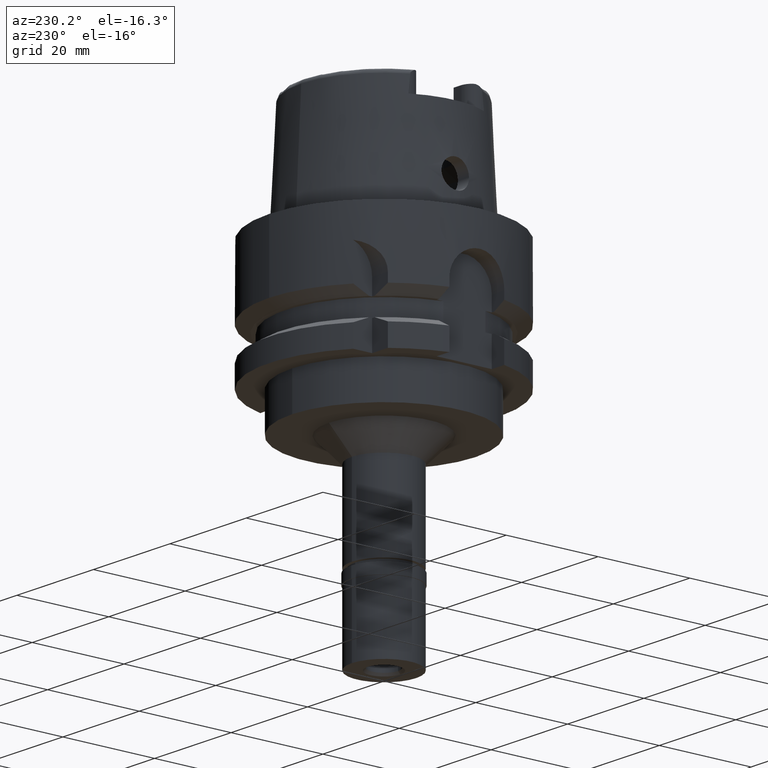
[diagram: clean part render]
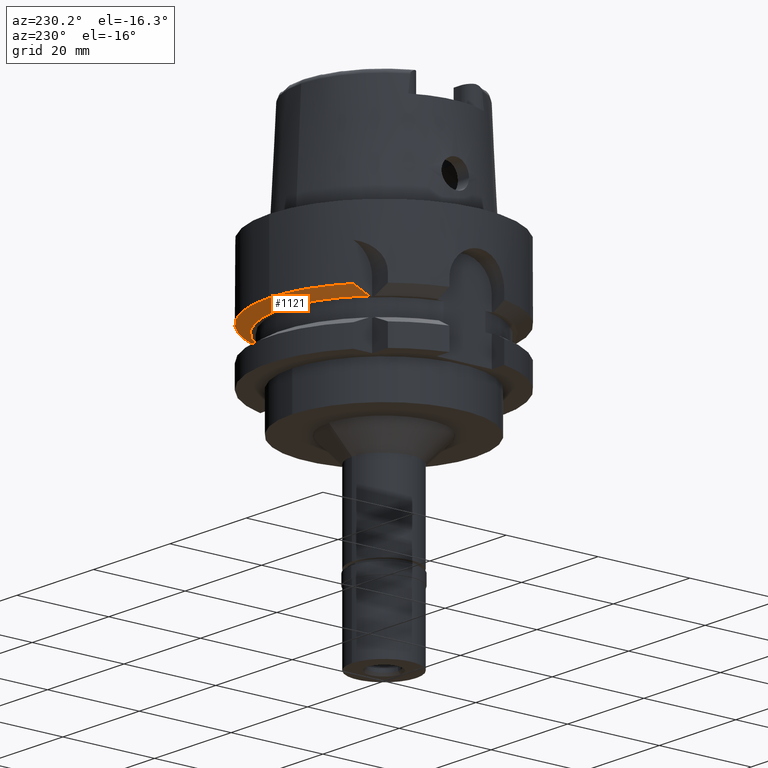
[diagram: same view with one face highlighted and labeled with its STEP entity id]
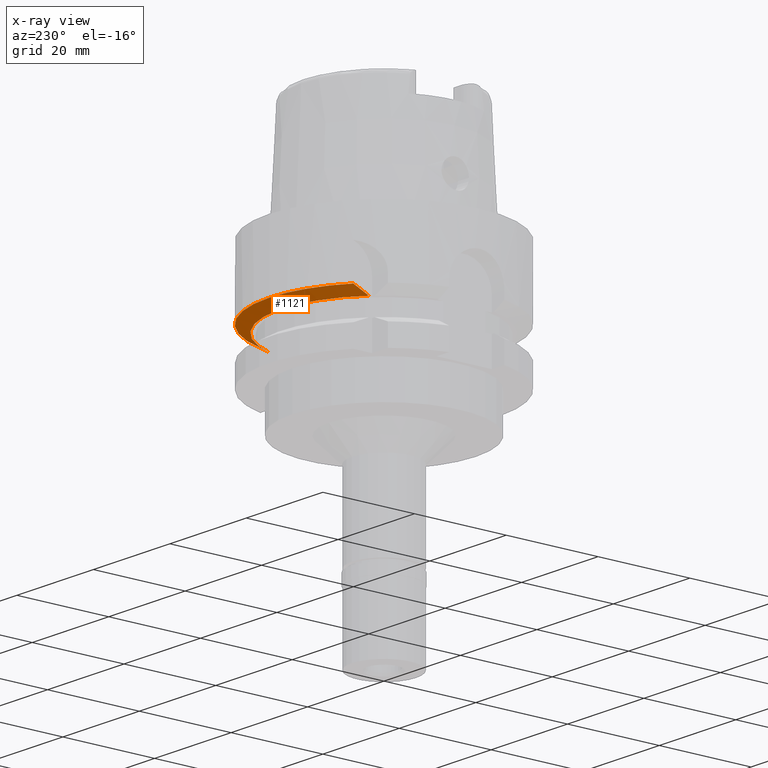
[diagram: x-ray of the same camera — body ghosted, the highlighted face saturated]
A machine part, auxiliary view. The second image highlights one B-rep face of the part: STEP entity #1121.
The next image is the same camera in x-ray: the body ghosted, the highlighted face saturated — about 1% of this face is hidden behind the body in this view.
In plain terms, the highlighted conical surface has half-angle 60 deg.
Its self-contained STEP definition (entity closure, byte-faithful):
#97 = DIRECTION ( 'NONE',  ( 0.0000000000000000000, 0.0000000000000000000, 1.000000000000000000 ) ) ;
#209 = CARTESIAN_POINT ( 'NONE',  ( 21.27562139418999720, 7.000000353524999497, -16.12500000000000000 ) ) ;
#278 = CARTESIAN_POINT ( 'NONE',  ( -15.49997362910369603, 17.26571859756561267, -15.66749143312159021 ) ) ;
#315 = VERTEX_POINT ( 'NONE', #3226 ) ;
#450 = CARTESIAN_POINT ( 'NONE',  ( 23.99999968298000042, 7.000001086911000314, -14.62249198428999897 ) ) ;
#729 = CARTESIAN_POINT ( 'NONE',  ( -15.50002786900227747, 18.41375079937796144, -15.16666509380010197 ) ) ;
#822 = AXIS2_PLACEMENT_3D ( 'NONE', #3325, #4054, #2147 ) ;
#892 = VERTEX_POINT ( 'NONE', #450 ) ;
#992 = FACE_OUTER_BOUND ( 'NONE', #4678, .T. ) ;
#1121 = ADVANCED_FACE ( 'NONE', ( #992 ), #4761, .T. ) ;
#1204 = CARTESIAN_POINT ( 'NONE',  ( 0.0000000000000000000, 0.0000000000000000000, -14.62250092523999889 ) ) ;
#1236 = DIRECTION ( 'NONE',  ( 0.0000000000000000000, 1.000000000000000000, 0.0000000000000000000 ) ) ;
#1391 = VERTEX_POINT ( 'NONE', #4696 ) ;
#1521 = ORIENTED_EDGE ( 'NONE', *, *, #4795, .T. ) ;
#1723 = CARTESIAN_POINT ( 'NONE',  ( 23.68769171553999797, 7.000001086911000314, -14.79559062294000071 ) ) ;
#1797 = AXIS2_PLACEMENT_3D ( 'NONE', #1204, #3075, #4594 ) ;
#1862 = ORIENTED_EDGE ( 'NONE', *, *, #2924, .T. ) ;
#1882 = CIRCLE ( 'NONE', #2281, 25.00000000000000000 ) ;
#1983 = CARTESIAN_POINT ( 'NONE',  ( 0.0000000000000000000, 25.00000000000000000, -14.62250092523999889 ) ) ;
#2147 = DIRECTION ( 'NONE',  ( 0.0000000000000000000, 1.000000000000000000, 0.0000000000000000000 ) ) ;
#2223 = VERTEX_POINT ( 'NONE', #1983 ) ;
#2229 = ORIENTED_EDGE ( 'NONE', *, *, #4061, .F. ) ;
#2281 = AXIS2_PLACEMENT_3D ( 'NONE', #3304, #2560, #4032 ) ;
#2433 = CIRCLE ( 'NONE', #1797, 25.00000000000000000 ) ;
#2472 = CARTESIAN_POINT ( 'NONE',  ( -15.49998696695999989, 16.16805725644999825, -16.12500000000000000 ) ) ;
#2485 = CARTESIAN_POINT ( 'NONE',  ( 23.06950377568000121, 6.999999539912000301, -15.13771000678000078 ) ) ;
#2560 = DIRECTION ( 'NONE',  ( 0.0000000000000000000, 0.0000000000000000000, 1.000000000000000000 ) ) ;
#2897 = CARTESIAN_POINT ( 'NONE',  ( 23.99999968298000042, 7.000001086911000314, -14.62249198428999897 ) ) ;
#2924 = EDGE_CURVE ( 'NONE', #3882, #1391, #3416, .T. ) ;
#2966 = ORIENTED_EDGE ( 'NONE', *, *, #3507, .F. ) ;
#3075 = DIRECTION ( 'NONE',  ( 0.0000000000000000000, 0.0000000000000000000, 1.000000000000000000 ) ) ;
#3226 = CARTESIAN_POINT ( 'NONE',  ( 21.27562139418999720, 7.000000353524999497, -16.12500000000000000 ) ) ;
#3304 = CARTESIAN_POINT ( 'NONE',  ( 0.0000000000000000000, 0.0000000000000000000, -14.62250092523999889 ) ) ;
#3325 = CARTESIAN_POINT ( 'NONE',  ( 0.0000000000000000000, 0.0000000000000000000, -15.37375046262000033 ) ) ;
#3416 = B_SPLINE_CURVE_WITH_KNOTS ( 'NONE', 3,
 ( #4067, #278, #729, #3772 ),
 .UNSPECIFIED., .F., .F.,
 ( 4, 4 ),
 ( 0.0000000000000000000, 1.000000000000000000 ),
 .UNSPECIFIED. ) ;
#3507 = EDGE_CURVE ( 'NONE', #315, #892, #3625, .T. ) ;
#3545 = AXIS2_PLACEMENT_3D ( 'NONE', #4667, #97, #1236 ) ;
#3625 = B_SPLINE_CURVE_WITH_KNOTS ( 'NONE', 3,
 ( #209, #3628, #3949, #2485, #1723, #2897 ),
 .UNSPECIFIED., .F., .F.,
 ( 4, 1, 1, 4 ),
 ( 0.0000000000000000000, 0.3333333333333000081, 0.6666666666667000474, 1.000000000000000000 ),
 .UNSPECIFIED. ) ;
#3628 = CARTESIAN_POINT ( 'NONE',  ( 21.56875815848000144, 7.000000353524999497, -15.96423532909999743 ) ) ;
#3772 = CARTESIAN_POINT ( 'NONE',  ( -15.50001397181000051, 19.61503420524999797, -14.62244977309000049 ) ) ;
#3882 = VERTEX_POINT ( 'NONE', #2472 ) ;
#3949 = CARTESIAN_POINT ( 'NONE',  ( 22.16139154240000053, 6.999999979943000383, -15.63857189141000248 ) ) ;
#3959 = EDGE_CURVE ( 'NONE', #892, #2223, #2433, .T. ) ;
#4021 = CIRCLE ( 'NONE', #3545, 22.39759526418999869 ) ;
#4032 = DIRECTION ( 'NONE',  ( 0.0000000000000000000, 1.000000000000000000, 0.0000000000000000000 ) ) ;
#4054 = DIRECTION ( 'NONE',  ( 0.0000000000000000000, 0.0000000000000000000, 1.000000000000000000 ) ) ;
#4061 = EDGE_CURVE ( 'NONE', #2223, #1391, #1882, .T. ) ;
#4067 = CARTESIAN_POINT ( 'NONE',  ( -15.49998696695999989, 16.16805725644999825, -16.12500000000000000 ) ) ;
#4558 = ORIENTED_EDGE ( 'NONE', *, *, #3959, .F. ) ;
#4594 = DIRECTION ( 'NONE',  ( 0.9599999999999999645, 0.2800000000000000266, 0.0000000000000000000 ) ) ;
#4667 = CARTESIAN_POINT ( 'NONE',  ( 0.0000000000000000000, 0.0000000000000000000, -16.12500000000000000 ) ) ;
#4678 = EDGE_LOOP ( 'NONE', ( #2229, #4558, #2966, #1521, #1862 ) ) ;
#4696 = CARTESIAN_POINT ( 'NONE',  ( -15.50001397181000051, 19.61503420524999797, -14.62244977309000049 ) ) ;
#4761 = CONICAL_SURFACE ( 'NONE', #822, 23.69879763209999979, 1.047197551196400456 ) ;
#4795 = EDGE_CURVE ( 'NONE', #315, #3882, #4021, .T. ) ;